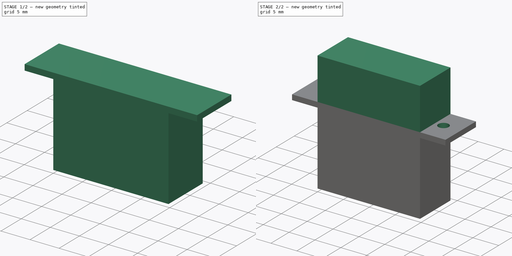
[diagram: build sequence overview — one tinted view per stage of 2, left to right]
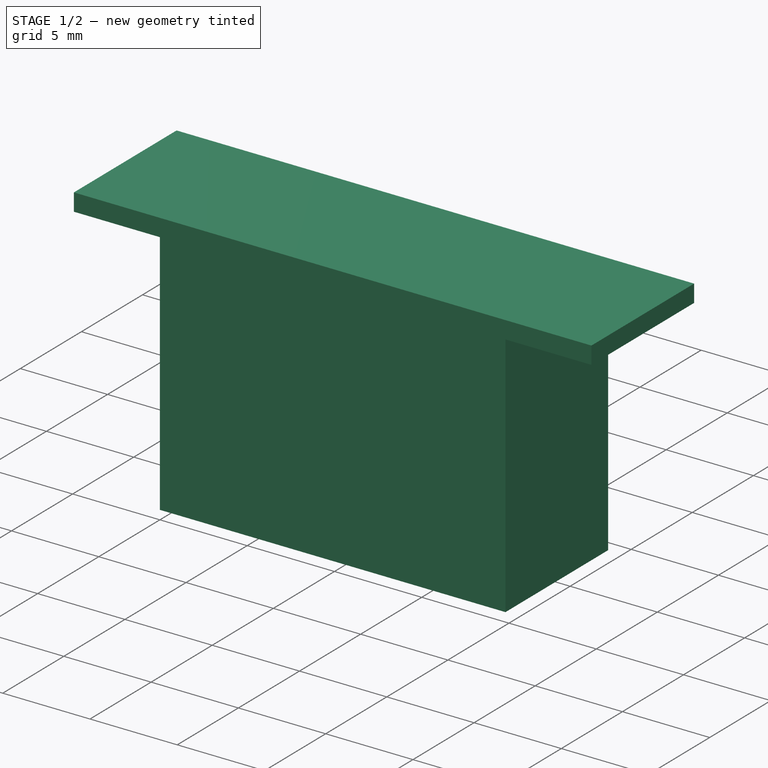
[diagram: stage 1 of 2 — iso view after this stage's code; geometry added in this stage tinted green]
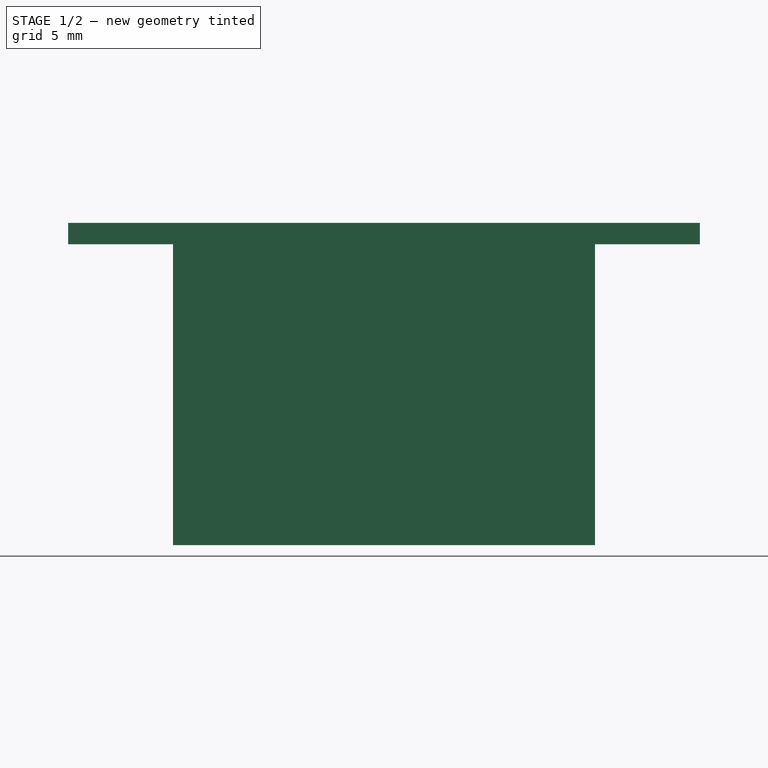
[diagram: stage 1 of 2 — front view after this stage's code; geometry added in this stage tinted green]
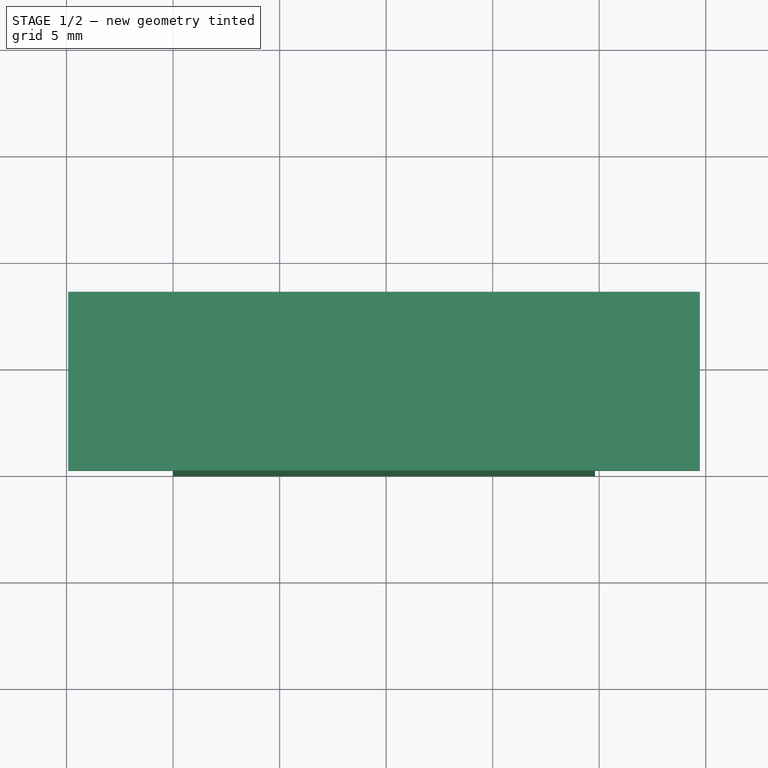
[diagram: stage 1 of 2 — top view after this stage's code; geometry added in this stage tinted green]
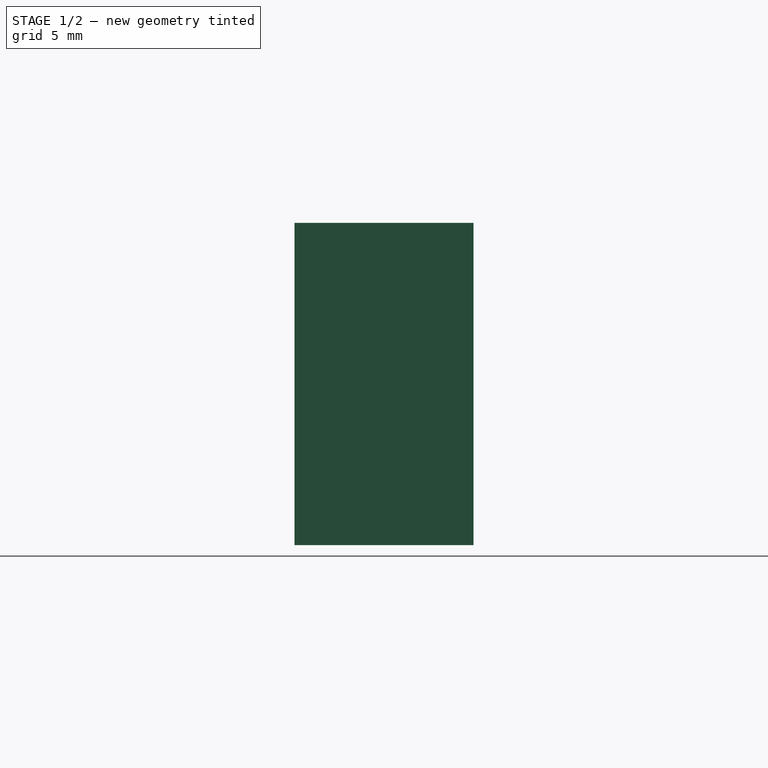
[diagram: stage 1 of 2 — right view after this stage's code; geometry added in this stage tinted green]
FCSTD DOCUMENT  (FreeCAD 0.16R6712 (Git))
Label: Servo_CYS
License: All rights reserved
LicenseURL: http://en.wikipedia.org/wiki/All_rights_reserved
objects: Sketcher::SketchObject×4, PartDesign::Pad×3, PartDesign::Pocket×1
note: 12 computed .brp shape members not serialized (recipe doc carries the construction recipe); baked Part::Feature solids carry a one-line shape summary decoded from their .brp

FEATURE [Sketcher::SketchObject] Sketch
  sketch-geometry (4):
    g0: LineSegment StartX=0 StartY=8.4 StartZ=0 EndX=19.8 EndY=8.4 EndZ=0
    g1: LineSegment StartX=19.8 StartY=8.4 StartZ=0 EndX=19.8 EndY=0 EndZ=0
    g2: LineSegment StartX=19.8 StartY=0 StartZ=0 EndX=0 EndY=0 EndZ=0
    g3: LineSegment StartX=0 StartY=0 StartZ=0 EndX=0 EndY=8.4 EndZ=0
  constraints (11):
    c: Coincident(g0,g1)
    c: Coincident(g1,g2)
    c: Coincident(g2,g3)
    c: Coincident(g3,g0)
    c: Horizontal(g0)
    c: Horizontal(g2)
    c: Vertical(g1)
    c: Vertical(g3)
    c: Coincident(g2,g-1)
    c: DistanceY(g3,g3) = 8.4
    c: DistanceX(g0,g0) = 19.8
FEATURE [PartDesign::Pad] Pad
  Length = 14.12
  Length2 = 100
  Sketch = -> Sketch
  Type = 0
FEATURE [Sketcher::SketchObject] Sketch001
  ExternalGeometry = -> [Pad]
  Placement = pos=(0,0,14.12) rot=(0,0,1;0rad)
  Support = -> Pad [Face6]
  sketch-geometry (5):
    g0: LineSegment StartX=-4.925 StartY=8.4 StartZ=0 EndX=24.725 EndY=8.4 EndZ=0
    g1: LineSegment StartX=24.725 StartY=8.4 StartZ=0 EndX=24.725 EndY=0 EndZ=0
    g2: LineSegment StartX=24.725 StartY=0 StartZ=0 EndX=-4.925 EndY=0 EndZ=0
    g3: LineSegment StartX=-4.925 StartY=0 StartZ=0 EndX=-4.925 EndY=8.4 EndZ=0
    g4: LineSegment [constr] StartX=9.9 StartY=8.4 StartZ=0 EndX=9.9 EndY=0 EndZ=0
  constraints (16):
    c: Coincident(g0,g1)
    c: Coincident(g1,g2)
    c: Coincident(g2,g3)
    c: Coincident(g3,g0)
    c: Horizontal(g0)
    c: Horizontal(g2)
    c: Vertical(g1)
    c: Vertical(g3)
    c: PointOnObject(g1,g-1)
    c: PointOnObject(g0,g-3)
    c: DistanceX(g2,g2) = 29.65
    c: PointOnObject(g4,g-3)
    c: PointOnObject(g4,g2)
    c: Vertical(g4)
    c: Symmetric(g-3,g-3,g4)
    c: Symmetric(g0,g0,g4)
FEATURE [PartDesign::Pad] Pad001
  Length = 1
  Length2 = 100
  Sketch = -> Sketch001
  Type = 0
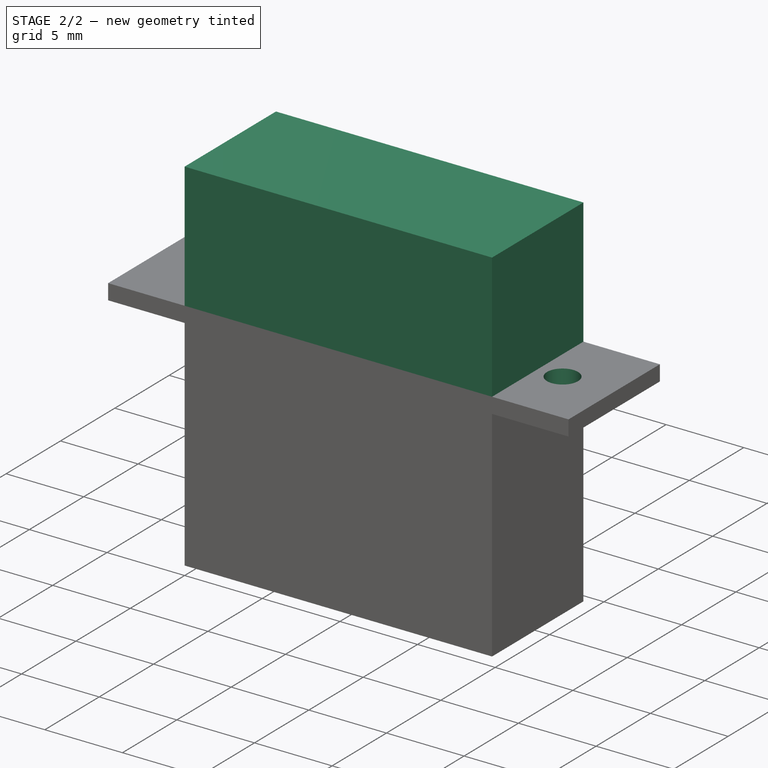
[diagram: stage 2 of 2 — iso view after this stage's code; geometry added in this stage tinted green]
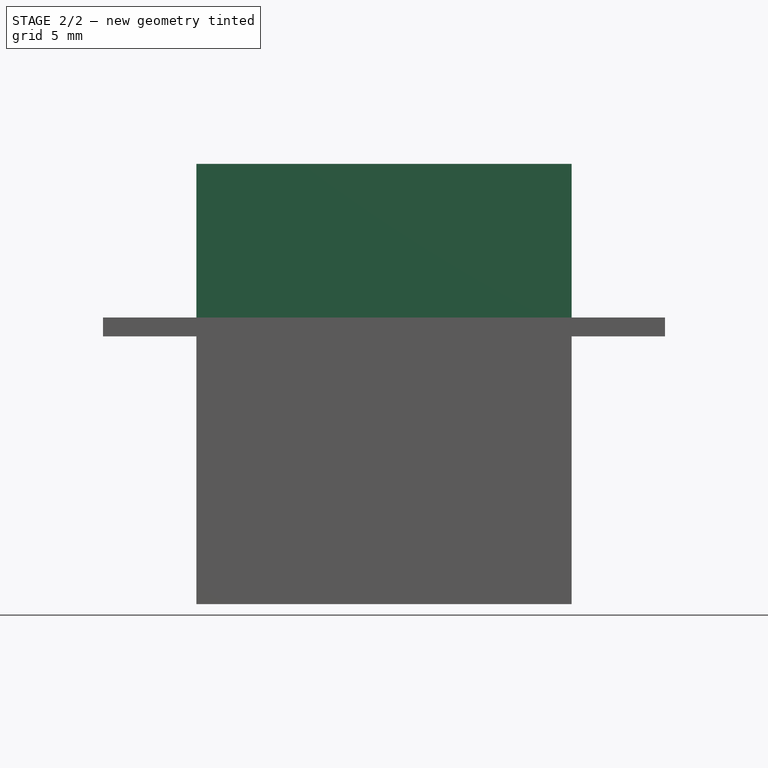
[diagram: stage 2 of 2 — front view after this stage's code; geometry added in this stage tinted green]
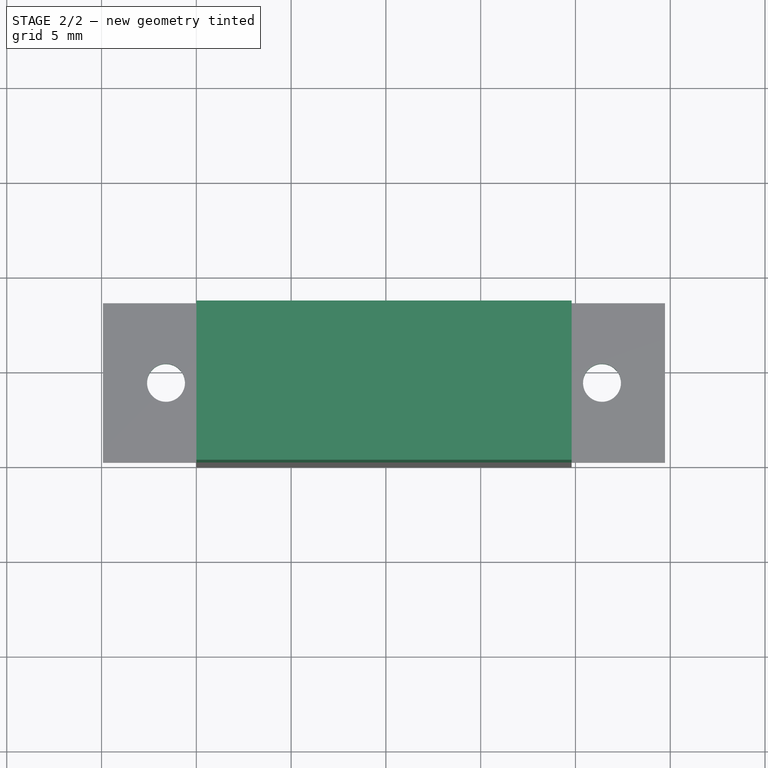
[diagram: stage 2 of 2 — top view after this stage's code; geometry added in this stage tinted green]
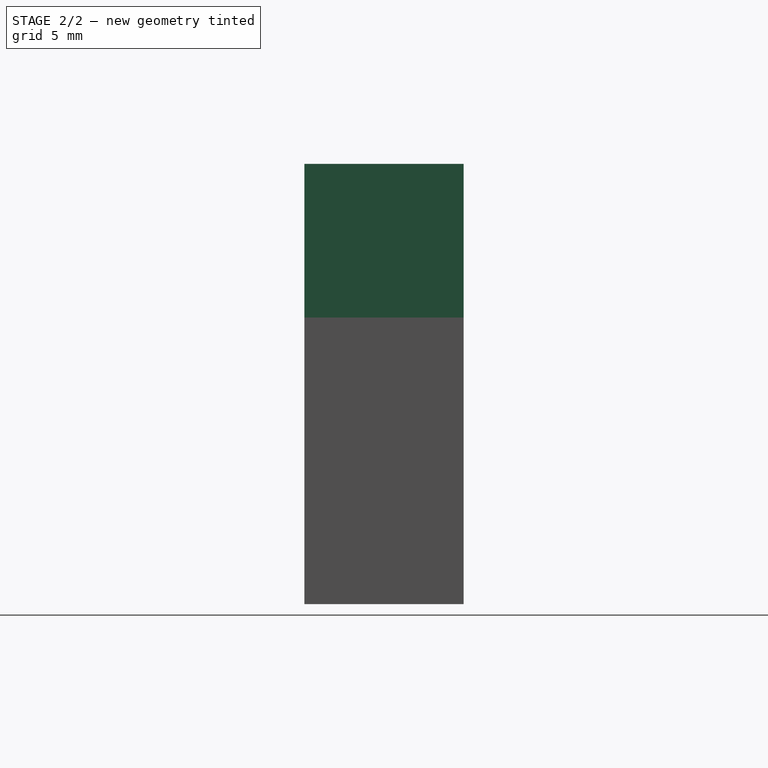
[diagram: stage 2 of 2 — right view after this stage's code; geometry added in this stage tinted green]
FEATURE [Sketcher::SketchObject] Sketch002
  ExternalGeometry = -> [Pad001]
  Placement = pos=(0,0,15.12) rot=(0,0,1;0rad)
  Support = -> Pad001 [Face11]
  sketch-geometry (4):
    g0: Circle CenterX=-1.6 CenterY=4.2 CenterZ=0 NormalX=0 NormalY=0 NormalZ=1 Radius=1
    g1: Circle CenterX=21.4 CenterY=4.2 CenterZ=0 NormalX=0 NormalY=0 NormalZ=1 Radius=1
    g2: LineSegment [constr] StartX=9.9 StartY=12.6803 StartZ=0 EndX=9.9 EndY=-4.79229 EndZ=0
    g3: LineSegment [constr] StartX=-12.8429 StartY=4.2 StartZ=0 EndX=36.5862 EndY=4.2 EndZ=0
  constraints (9):
    c: Horizontal(g3)
    c: Symmetric(g-3,g-4,g3)
    c: Symmetric(g-3,g-3,g2)
    c: PointOnObject(g0,g3)
    c: PointOnObject(g1,g3)
    c: DistanceX(g0,g1) = 23
    c: Symmetric(g0,g1,g2)
    c: Radius(g0) = 1
    c: Radius(g1) = 1
FEATURE [PartDesign::Pocket] Pocket
  Length = 5
  Sketch = -> Sketch002
  Type = 1
FEATURE [Sketcher::SketchObject] Sketch003
  ExternalGeometry = -> [Pocket]
  Placement = pos=(0,0,15.12) rot=(0,0,1;0rad)
  Support = -> Pocket [Face11]
  sketch-geometry (5):
    g0: LineSegment StartX=0 StartY=8.4 StartZ=0 EndX=19.8 EndY=8.4 EndZ=0
    g1: LineSegment StartX=19.8 StartY=8.4 StartZ=0 EndX=19.8 EndY=0 EndZ=0
    g2: LineSegment StartX=19.8 StartY=0 StartZ=0 EndX=0 EndY=0 EndZ=0
    g3: LineSegment StartX=0 StartY=0 StartZ=0 EndX=0 EndY=8.4 EndZ=0
    g4: LineSegment [constr] StartX=9.9 StartY=8.4 StartZ=0 EndX=9.9 EndY=0 EndZ=0
  constraints (16):
    c: Coincident(g0,g1)
    c: Coincident(g1,g2)
    c: Coincident(g2,g3)
    c: Coincident(g3,g0)
    c: Horizontal(g0)
    c: Horizontal(g2)
    c: Vertical(g1)
    c: Vertical(g3)
    c: PointOnObject(g1,g-4)
    c: PointOnObject(g0,g-3)
    c: DistanceX(g0,g0) = 19.8
    c: PointOnObject(g4,g-3)
    c: PointOnObject(g4,g-4)
    c: Vertical(g4)
    c: Symmetric(g0,g0,g4)
    c: Symmetric(g-3,g-3,g4)
FEATURE [PartDesign::Pad] Pad002
  Length = 8.1
  Length2 = 100
  Sketch = -> Sketch003
  Type = 0
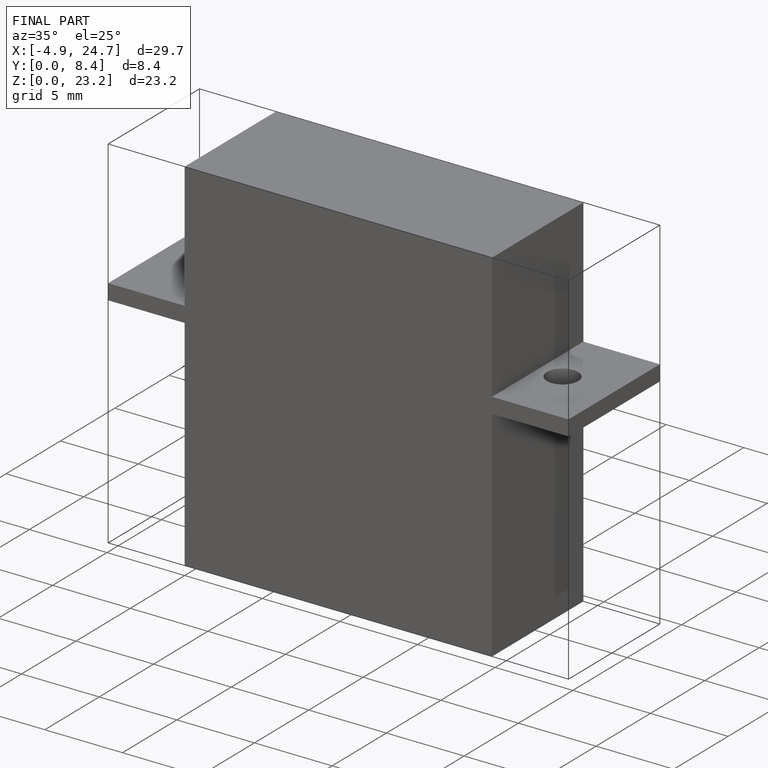
[diagram: finished part — iso view with bounding-box wireframe]
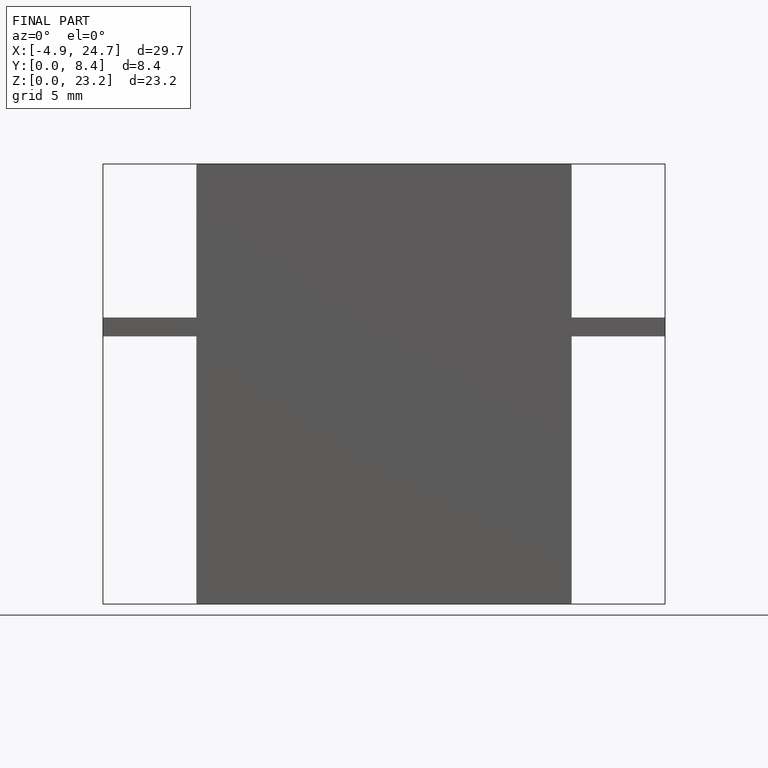
[diagram: finished part — front view with bounding-box wireframe]
